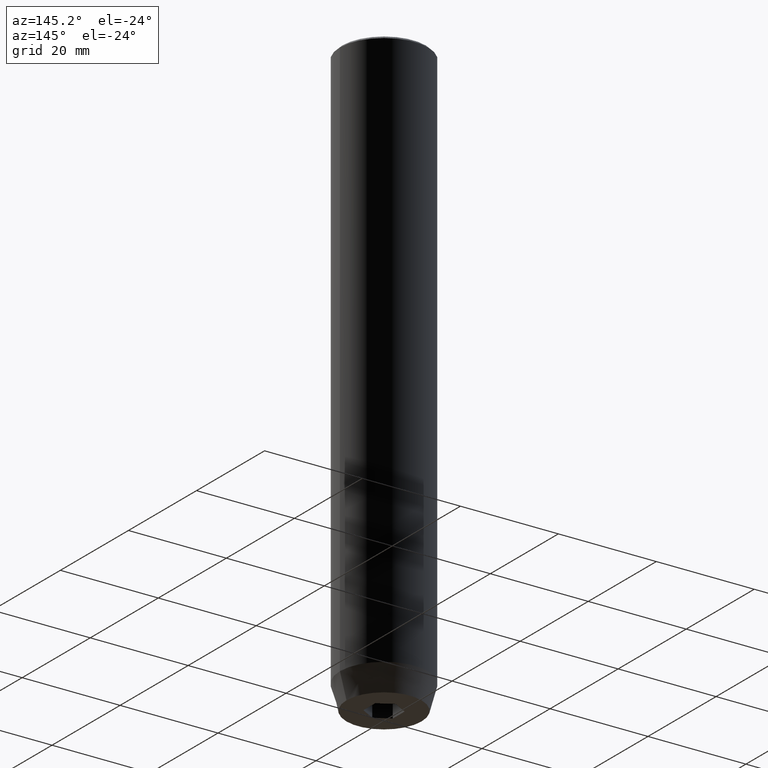
[diagram: clean part render]
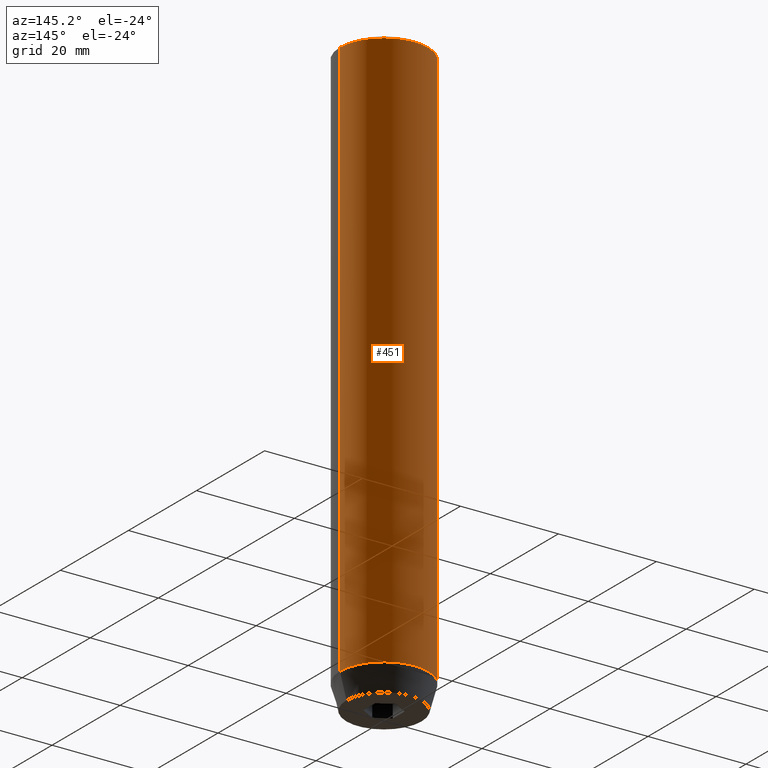
[diagram: same view with one face highlighted and labeled with its STEP entity id]
A machine part, auxiliary view. The second image highlights one B-rep face of the part: STEP entity #451.
In plain terms, the highlighted cylindrical surface (partial cylindrical patch) has radius 9 mm, axis along (-0, -0, 1).
Its self-contained STEP definition (entity closure, byte-faithful):
#4 = CIRCLE ( 'NONE', #541, 9.000000000000000000 ) ;
#41 = CARTESIAN_POINT ( 'NONE',  ( 0.000000000000000000, 0.000000000000000000, 0.000000000000000000 ) ) ;
#76 = EDGE_LOOP ( 'NONE', ( #204, #610, #299, #490 ) ) ;
#101 = FACE_OUTER_BOUND ( 'NONE', #76, .T. ) ;
#102 = VERTEX_POINT ( 'NONE', #158 ) ;
#123 = VECTOR ( 'NONE', #427, 1000.000000000000000 ) ;
#128 = CARTESIAN_POINT ( 'NONE',  ( 0.000000000000000000, 0.000000000000000000, -0.4999999999999952260 ) ) ;
#134 = DIRECTION ( 'NONE',  ( -0.000000000000000000, -0.000000000000000000, 1.000000000000000000 ) ) ;
#158 = CARTESIAN_POINT ( 'NONE',  ( 9.000000000000000000, 0.000000000000000000, -114.9999999999999858 ) ) ;
#180 = CARTESIAN_POINT ( 'NONE',  ( 0.000000000000000000, 0.000000000000000000, -114.9999999999999858 ) ) ;
#204 = ORIENTED_EDGE ( 'NONE', *, *, #250, .T. ) ;
#208 = EDGE_CURVE ( 'NONE', #102, #333, #329, .T. ) ;
#233 = VECTOR ( 'NONE', #430, 1000.000000000000000 ) ;
#236 = EDGE_CURVE ( 'NONE', #630, #558, #325, .T. ) ;
#250 = EDGE_CURVE ( 'NONE', #102, #630, #4, .T. ) ;
#282 = CARTESIAN_POINT ( 'NONE',  ( 9.000000000000000000, 0.000000000000000000, 0.000000000000000000 ) ) ;
#298 = EDGE_CURVE ( 'NONE', #558, #333, #550, .T. ) ;
#299 = ORIENTED_EDGE ( 'NONE', *, *, #298, .T. ) ;
#306 = AXIS2_PLACEMENT_3D ( 'NONE', #41, #134, #342 ) ;
#325 = LINE ( 'NONE', #522, #123 ) ;
#329 = LINE ( 'NONE', #282, #233 ) ;
#333 = VERTEX_POINT ( 'NONE', #500 ) ;
#335 = DIRECTION ( 'NONE',  ( 1.000000000000000000, 0.000000000000000000, 0.000000000000000000 ) ) ;
#342 = DIRECTION ( 'NONE',  ( 1.000000000000000000, 0.000000000000000000, 0.000000000000000000 ) ) ;
#379 = DIRECTION ( 'NONE',  ( 0.000000000000000000, 0.000000000000000000, -1.000000000000000000 ) ) ;
#427 = DIRECTION ( 'NONE',  ( -0.000000000000000000, -0.000000000000000000, 1.000000000000000000 ) ) ;
#430 = DIRECTION ( 'NONE',  ( -0.000000000000000000, -0.000000000000000000, 1.000000000000000000 ) ) ;
#451 = ADVANCED_FACE ( 'NONE', ( #101 ), #545, .T. ) ;
#489 = DIRECTION ( 'NONE',  ( 1.000000000000000000, 0.000000000000000000, 0.000000000000000000 ) ) ;
#490 = ORIENTED_EDGE ( 'NONE', *, *, #208, .F. ) ;
#500 = CARTESIAN_POINT ( 'NONE',  ( 9.000000000000000000, 0.000000000000000000, -0.4999999999999952260 ) ) ;
#522 = CARTESIAN_POINT ( 'NONE',  ( -9.000000000000000000, 1.102182119232617714E-15, 0.000000000000000000 ) ) ;
#541 = AXIS2_PLACEMENT_3D ( 'NONE', #180, #575, #489 ) ;
#545 = CYLINDRICAL_SURFACE ( 'NONE', #306, 9.000000000000000000 ) ;
#550 = CIRCLE ( 'NONE', #582, 9.000000000000000000 ) ;
#558 = VERTEX_POINT ( 'NONE', #598 ) ;
#575 = DIRECTION ( 'NONE',  ( -0.000000000000000000, -0.000000000000000000, 1.000000000000000000 ) ) ;
#582 = AXIS2_PLACEMENT_3D ( 'NONE', #128, #379, #335 ) ;
#598 = CARTESIAN_POINT ( 'NONE',  ( -9.000000000000000000, 1.102182119232617714E-15, -0.4999999999999952260 ) ) ;
#610 = ORIENTED_EDGE ( 'NONE', *, *, #236, .T. ) ;
#625 = CARTESIAN_POINT ( 'NONE',  ( -9.000000000000000000, 1.102182119232617714E-15, -114.9999999999999858 ) ) ;
#630 = VERTEX_POINT ( 'NONE', #625 ) ;